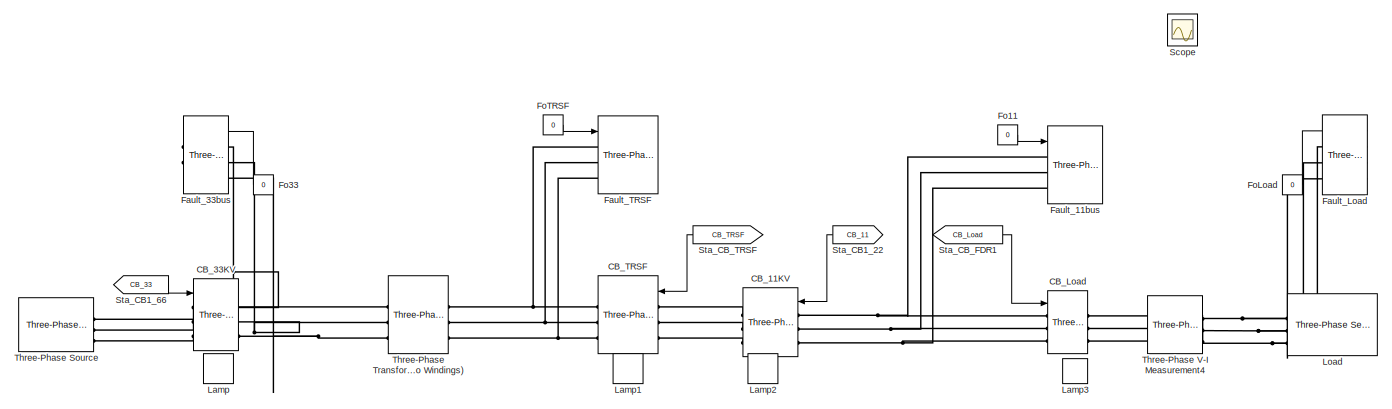
[diagram: root canvas - part 1/2, full width, top band]
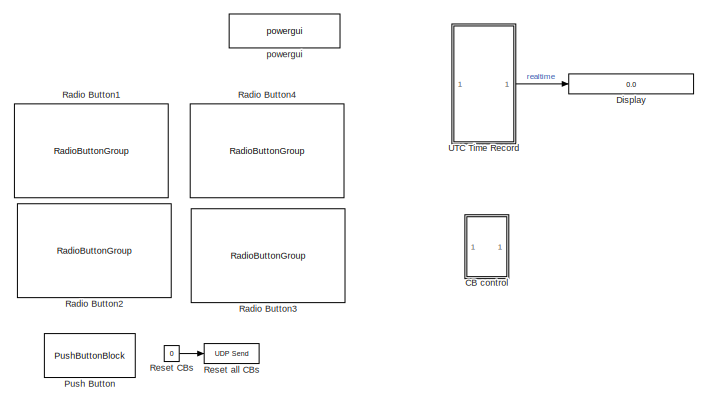
[diagram: root canvas - part 2/2, bottom right region]
MODEL slx_e654f8ced776
KIND model
CONFIG AbsTol = auto
CONFIG EnableMultiTasking = on
CONFIG FixedStep = auto
CONFIG MaxStep = 0.066666666666666671
CONFIG MinStep = auto
CONFIG RelTol = 1e-4
CONFIG SampleTimeConstraint = Unconstrained
CONFIG SolverName = ode23tb
CONFIG StartTime = 0.0
CONFIG StopTime = 50
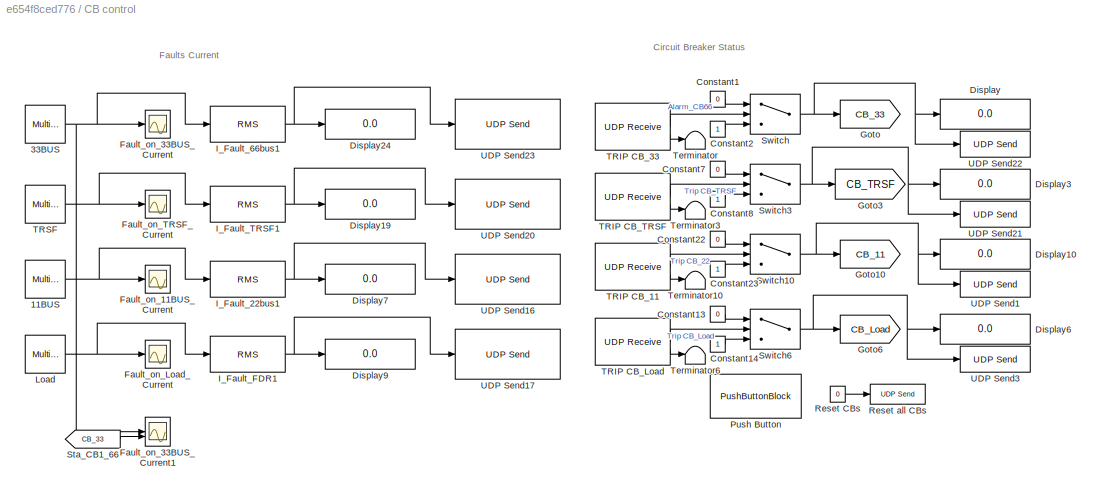
BLOCK [SubSystem] CB control
BLOCK [Reference] CB control/11BUS  REF=spsMultimeterLib/Multimeter
  LibrarySourceBlock = sps_lib/Sensors and Measurements/Multimeter
  SourceBlock = spsMultimeterLib/Multimeter
  SourceType = Multimeter
BLOCK [Reference] CB control/33BUS  REF=spsMultimeterLib/Multimeter
  LibrarySourceBlock = sps_lib/Sensors and Measurements/Multimeter
  SourceBlock = spsMultimeterLib/Multimeter
  SourceType = Multimeter
BLOCK [Constant] CB control/Constant1
  Value = 0
BLOCK [Constant] CB control/Constant13
  Value = 0
BLOCK [Constant] CB control/Constant14
BLOCK [Constant] CB control/Constant2
BLOCK [Constant] CB control/Constant22
  Value = 0
BLOCK [Constant] CB control/Constant23
BLOCK [Constant] CB control/Constant7
  Value = 0
BLOCK [Constant] CB control/Constant8
BLOCK [Display] CB control/Display
  Decimation = 1
BLOCK [Display] CB control/Display10
  Decimation = 1
BLOCK [Display] CB control/Display19
  Decimation = 1
BLOCK [Display] CB control/Display24
  Decimation = 1
BLOCK [Display] CB control/Display3
  Decimation = 1
BLOCK [Display] CB control/Display6
  Decimation = 1
BLOCK [Display] CB control/Display7
  Decimation = 1
BLOCK [Display] CB control/Display9
  Decimation = 1
BLOCK [Scope] CB control/Fault_on_11BUS_Current
  Floating = off
  NumInputPorts = 1
  ScopeSpecificationString = Simulink.scopes.TimeScopeBlockCfg('CurrentConfiguration', extmgr.ConfigurationSet(extmgr.Configuration('Core','General UI',true),extmgr.Configuration('Core','Source UI',true),extmgr.Configuration('Sources','WiredSimulink',true,'DataLoggingVariableName','ScopeData1','DataLoggingSaveFormat','StructureWithTime','DataLoggingLimitDataPoints',true,'DataLoggingDecimation','1','DataLoggingDecimateData',tr...<+1819ch>
BLOCK [Scope] CB control/Fault_on_33BUS_Current
  Floating = off
  NumInputPorts = 1
  ScopeSpecificationString = Simulink.scopes.TimeScopeBlockCfg('CurrentConfiguration', extmgr.ConfigurationSet(extmgr.Configuration('Core','General UI',true),extmgr.Configuration('Core','Source UI',true),extmgr.Configuration('Sources','WiredSimulink',true,'DataLoggingVariableName','ScopeData2','DataLoggingSaveFormat','StructureWithTime','DataLoggingLimitDataPoints',true,'DataLoggingDecimation','1','DataLoggingDecimateData',tr...<+1859ch>
BLOCK [Scope] CB control/Fault_on_33BUS_Current1
  Floating = off
  NumInputPorts = 2
  ScopeSpecificationString = Simulink.scopes.TimeScopeBlockCfg('CurrentConfiguration', extmgr.ConfigurationSet(extmgr.Configuration('Core','General UI',true),extmgr.Configuration('Core','Source UI',true),extmgr.Configuration('Sources','WiredSimulink',true,'DataLoggingVariableName','ScopeData1','DataLoggingSaveFormat','StructureWithTime','DataLoggingLimitDataPoints',true,'DataLoggingDecimation','1','DataLoggingDecimateData',tr...<+1793ch>
BLOCK [Scope] CB control/Fault_on_Load_Current
  Floating = off
  NumInputPorts = 1
  ScopeSpecificationString = Simulink.scopes.TimeScopeBlockCfg('CurrentConfiguration', extmgr.ConfigurationSet(extmgr.Configuration('Core','General UI',true),extmgr.Configuration('Core','Source UI',true),extmgr.Configuration('Sources','WiredSimulink',true,'DataLoggingVariableName','ScopeData3','DataLoggingSaveFormat','StructureWithTime','DataLoggingLimitDataPoints',true,'DataLoggingDecimation','1','DataLoggingDecimateData',tr...<+1826ch>
BLOCK [Scope] CB control/Fault_on_TRSF_Current
  Floating = off
  NumInputPorts = 1
  ScopeSpecificationString = Simulink.scopes.TimeScopeBlockCfg('CurrentConfiguration', extmgr.ConfigurationSet(extmgr.Configuration('Core','General UI',true),extmgr.Configuration('Core','Source UI',true),extmgr.Configuration('Sources','WiredSimulink',true,'DataLoggingVariableName','ScopeData4','DataLoggingSaveFormat','StructureWithTime','DataLoggingLimitDataPoints',true,'DataLoggingDecimation','1','DataLoggingDecimateData',tr...<+1819ch>
BLOCK [Goto] CB control/Goto
  GotoTag = CB_33
  TagVisibility = global
BLOCK [Goto] CB control/Goto10
  GotoTag = CB_11
  TagVisibility = global
BLOCK [Goto] CB control/Goto3
  GotoTag = CB_TRSF
  TagVisibility = global
BLOCK [Goto] CB control/Goto6
  GotoTag = CB_Load
  TagVisibility = global
BLOCK [Reference] CB control/I_Fault_22bus1  REF=dspstat3/RMS
  SourceBlock = dspstat3/RMS
  SourceType = RMS
  UserDataPersistent = on
BLOCK [Reference] CB control/I_Fault_66bus1  REF=dspstat3/RMS
  SourceBlock = dspstat3/RMS
  SourceType = RMS
  UserDataPersistent = on
BLOCK [Reference] CB control/I_Fault_FDR1  REF=dspstat3/RMS
  SourceBlock = dspstat3/RMS
  SourceType = RMS
  UserDataPersistent = on
BLOCK [Reference] CB control/I_Fault_TRSF1  REF=dspstat3/RMS
  SourceBlock = dspstat3/RMS
  SourceType = RMS
  UserDataPersistent = on
BLOCK [Reference] CB control/Load  REF=spsMultimeterLib/Multimeter
  LibrarySourceBlock = sps_lib/Sensors and Measurements/Multimeter
  SourceBlock = spsMultimeterLib/Multimeter
  SourceType = Multimeter
BLOCK [PushButtonBlock] CB control/Push Button
  ButtonText = Reset All CBs
  OffValue = 0.000000
BLOCK [Constant] CB control/Reset CBs
  SampleTime = 0
  Value = 0
BLOCK [Reference] CB control/Reset all CBs  REF=dspnetwork/UDP Send
  SourceBlock = dspnetwork/UDP Send
  SourceType = UDP Send
BLOCK [From] CB control/Sta_CB1_66
  GotoTag = CB_33
  IconDisplay = Tag and signal name
  TagVisibility = global
BLOCK [Switch] CB control/Switch
  Criteria = u2 > Threshold
  InputSameDT = off
  SaturateOnIntegerOverflow = off
BLOCK [Switch] CB control/Switch10
  Criteria = u2 > Threshold
  InputSameDT = off
  SaturateOnIntegerOverflow = off
BLOCK [Switch] CB control/Switch3
  Criteria = u2 > Threshold
  InputSameDT = off
  SaturateOnIntegerOverflow = off
BLOCK [Switch] CB control/Switch6
  Criteria = u2 > Threshold
  InputSameDT = off
  SaturateOnIntegerOverflow = off
BLOCK [Reference] CB control/TRIP CB_11  REF=dspnetwork/UDP Receive
  SourceBlock = dspnetwork/UDP Receive
  SourceType = UDP Receive
BLOCK [Reference] CB control/TRIP CB_33  REF=dspnetwork/UDP Receive
  SourceBlock = dspnetwork/UDP Receive
  SourceType = UDP Receive
BLOCK [Reference] CB control/TRIP CB_Load  REF=dspnetwork/UDP Receive
  SourceBlock = dspnetwork/UDP Receive
  SourceType = UDP Receive
BLOCK [Reference] CB control/TRIP CB_TRSF  REF=dspnetwork/UDP Receive
  SourceBlock = dspnetwork/UDP Receive
  SourceType = UDP Receive
BLOCK [Reference] CB control/TRSF  REF=spsMultimeterLib/Multimeter
  LibrarySourceBlock = sps_lib/Sensors and Measurements/Multimeter
  SourceBlock = spsMultimeterLib/Multimeter
  SourceType = Multimeter
BLOCK [Terminator] CB control/Terminator
BLOCK [Terminator] CB control/Terminator10
BLOCK [Terminator] CB control/Terminator3
BLOCK [Terminator] CB control/Terminator6
BLOCK [Reference] CB control/UDP Send1  REF=dspnetwork/UDP Send
  SourceBlock = dspnetwork/UDP Send
  SourceType = UDP Send
BLOCK [Reference] CB control/UDP Send16  REF=dspnetwork/UDP Send
  SourceBlock = dspnetwork/UDP Send
  SourceType = UDP Send
BLOCK [Reference] CB control/UDP Send17  REF=dspnetwork/UDP Send
  SourceBlock = dspnetwork/UDP Send
  SourceType = UDP Send
BLOCK [Reference] CB control/UDP Send20  REF=dspnetwork/UDP Send
  SourceBlock = dspnetwork/UDP Send
  SourceType = UDP Send
BLOCK [Reference] CB control/UDP Send21  REF=dspnetwork/UDP Send
  SourceBlock = dspnetwork/UDP Send
  SourceType = UDP Send
BLOCK [Reference] CB control/UDP Send22  REF=dspnetwork/UDP Send
  SourceBlock = dspnetwork/UDP Send
  SourceType = UDP Send
BLOCK [Reference] CB control/UDP Send23  REF=dspnetwork/UDP Send
  SourceBlock = dspnetwork/UDP Send
  SourceType = UDP Send
BLOCK [Reference] CB control/UDP Send3  REF=dspnetwork/UDP Send
  SourceBlock = dspnetwork/UDP Send
  SourceType = UDP Send
BLOCK [Reference] CB_11KV  REF=spsThreePhaseBreakerLib/Three-Phase Breaker
  LibrarySourceBlock = sps_lib/Power Grid Elements/Three-Phase Breaker
  NameLocation = top
  SourceBlock = spsThreePhaseBreakerLib/Three-Phase Breaker
  SourceType = Three-Phase Breaker
BLOCK [Reference] CB_33KV  REF=spsThreePhaseBreakerLib/Three-Phase Breaker
  LibrarySourceBlock = sps_lib/Power Grid Elements/Three-Phase Breaker
  NameLocation = top
  SourceBlock = spsThreePhaseBreakerLib/Three-Phase Breaker
  SourceType = Three-Phase Breaker
BLOCK [Reference] CB_Load  REF=spsThreePhaseBreakerLib/Three-Phase Breaker
  LibrarySourceBlock = sps_lib/Power Grid Elements/Three-Phase Breaker
  NameLocation = top
  SourceBlock = spsThreePhaseBreakerLib/Three-Phase Breaker
  SourceType = Three-Phase Breaker
BLOCK [Reference] CB_TRSF  REF=spsThreePhaseBreakerLib/Three-Phase Breaker
  LibrarySourceBlock = sps_lib/Power Grid Elements/Three-Phase Breaker
  NameLocation = top
  SourceBlock = spsThreePhaseBreakerLib/Three-Phase Breaker
  SourceType = Three-Phase Breaker
BLOCK [Display] Display
  Commented = on
  Decimation = 1
  Format = long
BLOCK [Reference] Fault_11bus  REF=spsThreePhaseFaultLib/Three-Phase Fault
  LibrarySourceBlock = sps_lib/Power Grid Elements/Three-Phase Fault
  NameLocation = top
  SourceBlock = spsThreePhaseFaultLib/Three-Phase Fault
  SourceType = Three-Phase Fault
BLOCK [Reference] Fault_33bus  REF=spsThreePhaseFaultLib/Three-Phase Fault
  LibrarySourceBlock = sps_lib/Power Grid Elements/Three-Phase Fault
  SourceBlock = spsThreePhaseFaultLib/Three-Phase Fault
  SourceType = Three-Phase Fault
BLOCK [Reference] Fault_Load  REF=spsThreePhaseFaultLib/Three-Phase Fault
  LibrarySourceBlock = sps_lib/Power Grid Elements/Three-Phase Fault
  NameLocation = right
  SourceBlock = spsThreePhaseFaultLib/Three-Phase Fault
  SourceType = Three-Phase Fault
BLOCK [Reference] Fault_TRSF  REF=spsThreePhaseFaultLib/Three-Phase Fault
  LibrarySourceBlock = sps_lib/Power Grid Elements/Three-Phase Fault
  NameLocation = top
  SourceBlock = spsThreePhaseFaultLib/Three-Phase Fault
  SourceType = Three-Phase Fault
BLOCK [Constant] Fo11
  NameLocation = top
  SampleTime = 0
  Value = 0
BLOCK [Constant] Fo33
  SampleTime = 0
  Value = 0
BLOCK [Constant] FoLoad
  SampleTime = 0
  Value = 0
BLOCK [Constant] FoTRSF
  SampleTime = 0
  Value = 0
BLOCK [LampBlock] Lamp
  Icon = Square
  LabelPosition = Hide
BLOCK [LampBlock] Lamp1
  Icon = Square
  LabelPosition = Hide
BLOCK [LampBlock] Lamp2
  Icon = Square
  LabelPosition = Hide
BLOCK [LampBlock] Lamp3
  Icon = Square
  LabelPosition = Hide
BLOCK [Reference] Load  REF=spsThreePhaseSeriesRLCLoadLib/Three-Phase
Series RLC Load
  AttributesFormatString = \n
  LibrarySourceBlock = sps_lib/Passives/Three-Phase\nSeries RLC Load
  SourceBlock = spsThreePhaseSeriesRLCLoadLib/Three-Phase\nSeries RLC Load
  SourceType = Three-Phase Series RLC Load
BLOCK [PushButtonBlock] Push Button
  ButtonText = Reset All CBs
  OffValue = 0.000000
BLOCK [RadioButtonGroup] Radio Button1
  ButtonGroupName = Fault on 33bus
  LabelPosition = Hide
  SelectedLabel = Normal
BLOCK [RadioButtonGroup] Radio Button2
  ButtonGroupName = Fault on TRSF
  LabelPosition = Hide
  SelectedLabel = Normal
BLOCK [RadioButtonGroup] Radio Button3
  ButtonGroupName = Fault on Load
  LabelPosition = Hide
  SelectedLabel = Normal
BLOCK [RadioButtonGroup] Radio Button4
  ButtonGroupName = Fault on 11BUS
  LabelPosition = Hide
  SelectedLabel = Normal
BLOCK [Constant] Reset CBs
  SampleTime = 0
  Value = 0
BLOCK [Reference] Reset all CBs  REF=dspnetwork/UDP Send
  SourceBlock = dspnetwork/UDP Send
  SourceType = UDP Send
BLOCK [Scope] Scope
  Floating = off
  IOType = viewer
  NumInputPorts = 1
  ScopeSpecificationString = Simulink.scopes.TimeScopeBlockCfg('CurrentConfiguration', extmgr.ConfigurationSet(extmgr.Configuration('Core','General UI',true),extmgr.Configuration('Core','Source UI',true),extmgr.Configuration('Sources','WiredSimulink',true,'DataLoggingVariableName','ScopeData1'),extmgr.Configuration('Visuals','Time Domain',true,'SerializedDisplays',{struct('MinYLimReal','-10.00000','MaxYLimReal','10.00000','YL...<+1394ch>
BLOCK [From] Sta_CB1_22
  GotoTag = CB_11
  TagVisibility = global
BLOCK [From] Sta_CB1_66
  GotoTag = CB_33
  IconDisplay = Tag and signal name
  TagVisibility = global
BLOCK [From] Sta_CB_FDR1
  GotoTag = CB_Load
  NameLocation = top
  TagVisibility = global
BLOCK [From] Sta_CB_TRSF
  GotoTag = CB_TRSF
  TagVisibility = global
BLOCK [Reference] Three-Phase Source  REF=spsThreePhaseSourceLib/Three-Phase Source
  LibrarySourceBlock = sps_lib/Sources/Three-Phase Source
  SourceBlock = spsThreePhaseSourceLib/Three-Phase Source
  SourceType = Three-Phase Source
BLOCK [Reference] Three-Phase Transformer (Two Windings)  REF=spsThreePhaseTransformerTwoWindingsLib/Three-Phase
Transformer
(Two Windings)
  LibrarySourceBlock = sps_lib/Power Grid Elements/Three-Phase\nTransformer\n(Two Windings)
  NameLocation = top
  SourceBlock = spsThreePhaseTransformerTwoWindingsLib/Three-Phase\nTransformer\n(Two Windings)
  SourceType = Three-Phase Transformer (Two Windings)
BLOCK [Reference] Three-Phase V-I Measurement4  REF=spsThreePhaseVIMeasurementLib/Three-Phase
V-I Measurement
  LibrarySourceBlock = sps_lib/Sensors and Measurements/Three-Phase\nV-I Measurement
  SourceBlock = spsThreePhaseVIMeasurementLib/Three-Phase\nV-I Measurement
  SourceType = Three-Phase VI Measurement
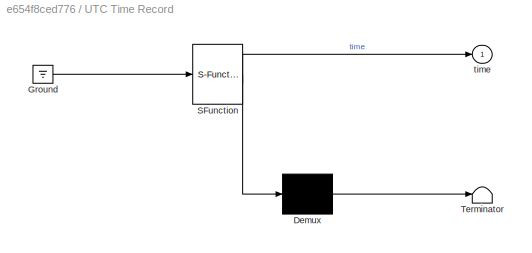
BLOCK [SubSystem] UTC Time Record
  Commented = on
  ErrorFcn = Stateflow.Translate.translate
  PermitHierarchicalResolution = ExplicitOnly
  SFBlockType = MATLAB Function
  TreatAsAtomicUnit = on
BLOCK [Demux] UTC Time Record/ Demux 
  Outputs = 1
BLOCK [Ground] UTC Time Record/ Ground 
BLOCK [S-Function] UTC Time Record/ SFunction 
  EnableBusSupport = on
  FunctionName = sf_sfun
  PortCounts = [1 2]
  SFcnIsStateOwnerBlock = off
  SFunctionDeploymentMode = off
  Tag = Stateflow S-Function 2
BLOCK [Terminator] UTC Time Record/ Terminator 
BLOCK [Outport] UTC Time Record/time
BLOCK [Reference] powergui  REF=sps_lib/powergui
  Priority = 1
  SourceBlock = sps_lib/powergui
  SourceType = PSB option menu block
ANNOTATION CB control: Circuit Breaker Status
ANNOTATION CB control: Faults Current
NET CB control/11BUS:1 -> CB control/Fault_on_11BUS_Current:1, CB control/I_Fault_22bus1:1
NET CB control/33BUS:1 -> CB control/Fault_on_33BUS_Current1:1, CB control/Fault_on_33BUS_Current:1, CB control/I_Fault_66bus1:1
LINE CB control/Constant13:1 -> CB control/Switch6:1
LINE CB control/Constant14:1 -> CB control/Switch6:3
LINE CB control/Constant1:1 -> CB control/Switch:1
LINE CB control/Constant22:1 -> CB control/Switch10:1
LINE CB control/Constant23:1 -> CB control/Switch10:3
LINE CB control/Constant2:1 -> CB control/Switch:3
LINE CB control/Constant7:1 -> CB control/Switch3:1
LINE CB control/Constant8:1 -> CB control/Switch3:3
NET CB control/I_Fault_22bus1:1 -> CB control/Display7:1, CB control/UDP Send16:1
NET CB control/I_Fault_66bus1:1 -> CB control/Display24:1, CB control/UDP Send23:1
NET CB control/I_Fault_FDR1:1 -> CB control/Display9:1, CB control/UDP Send17:1
NET CB control/I_Fault_TRSF1:1 -> CB control/Display19:1, CB control/UDP Send20:1
NET CB control/Load:1 -> CB control/Fault_on_Load_Current:1, CB control/I_Fault_FDR1:1
LINE CB control/Reset CBs:1 -> CB control/Reset all CBs:1
LINE CB control/Sta_CB1_66:1 -> CB control/Fault_on_33BUS_Current1:2
NET CB control/Switch10:1 -> CB control/Display10:1, CB control/Goto10:1, CB control/UDP Send1:1
NET CB control/Switch3:1 -> CB control/Display3:1, CB control/Goto3:1, CB control/UDP Send21:1
NET CB control/Switch6:1 -> CB control/Display6:1, CB control/Goto6:1, CB control/UDP Send3:1
NET CB control/Switch:1 -> CB control/Display:1, CB control/Goto:1, CB control/UDP Send22:1
LINE CB control/TRIP CB_11:1 -> CB control/Switch10:2
LINE CB control/TRIP CB_11:2 -> CB control/Terminator10:1
LINE CB control/TRIP CB_33:1 -> CB control/Switch:2
LINE CB control/TRIP CB_33:2 -> CB control/Terminator:1
LINE CB control/TRIP CB_Load:1 -> CB control/Switch6:2
LINE CB control/TRIP CB_Load:2 -> CB control/Terminator6:1
LINE CB control/TRIP CB_TRSF:1 -> CB control/Switch3:2
LINE CB control/TRIP CB_TRSF:2 -> CB control/Terminator3:1
NET CB control/TRSF:1 -> CB control/Fault_on_TRSF_Current:1, CB control/I_Fault_TRSF1:1
LINE Fo11:1 -> Fault_11bus:1
LINE Fo33:1 -> Fault_33bus:1
LINE FoLoad:1 -> Fault_Load:1
LINE FoTRSF:1 -> Fault_TRSF:1
LINE Reset CBs:1 -> Reset all CBs:1
LINE Sta_CB1_22:1 -> CB_11KV:1
LINE Sta_CB1_66:1 -> CB_33KV:1
LINE Sta_CB_FDR1:1 -> CB_Load:1
LINE Sta_CB_TRSF:1 -> CB_TRSF:1
LINE UTC Time Record:1 -> Display:1
PNET net1: CB_11KV:LConn1 -- CB_Load:LConn1 -- Fault_11bus:LConn1
PNET net2: CB_11KV:LConn2 -- CB_Load:LConn2 -- Fault_11bus:LConn2
PNET net3: CB_11KV:LConn3 -- CB_Load:LConn3 -- Fault_11bus:LConn3
PLINE CB_11KV:RConn1 -- CB_TRSF:LConn1
PLINE CB_11KV:RConn2 -- CB_TRSF:LConn2
PLINE CB_11KV:RConn3 -- CB_TRSF:LConn3
PLINE CB_33KV:LConn1 -- Three-Phase Source:RConn1
PLINE CB_33KV:LConn2 -- Three-Phase Source:RConn2
PLINE CB_33KV:LConn3 -- Three-Phase Source:RConn3
PNET net4: CB_33KV:RConn1 -- Fault_33bus:LConn1 -- Three-Phase Transformer (Two Windings):LConn1
PNET net5: CB_33KV:RConn2 -- Fault_33bus:LConn2 -- Three-Phase Transformer (Two Windings):LConn2
PNET net6: CB_33KV:RConn3 -- Fault_33bus:LConn3 -- Three-Phase Transformer (Two Windings):LConn3
PLINE CB_Load:RConn1 -- Three-Phase V-I Measurement4:LConn3
PLINE CB_Load:RConn2 -- Three-Phase V-I Measurement4:LConn2
PLINE CB_Load:RConn3 -- Three-Phase V-I Measurement4:LConn1
PNET net7: CB_TRSF:RConn1 -- Fault_TRSF:LConn1 -- Three-Phase Transformer (Two Windings):RConn1
PNET net8: CB_TRSF:RConn2 -- Fault_TRSF:LConn2 -- Three-Phase Transformer (Two Windings):RConn2
PNET net9: CB_TRSF:RConn3 -- Fault_TRSF:LConn3 -- Three-Phase Transformer (Two Windings):RConn3
PNET net10: Fault_Load:LConn1 -- Load:LConn3 -- Three-Phase V-I Measurement4:RConn1
PNET net11: Fault_Load:LConn2 -- Load:LConn2 -- Three-Phase V-I Measurement4:RConn2
PNET net12: Fault_Load:LConn3 -- Load:LConn1 -- Three-Phase V-I Measurement4:RConn3
note: NET lines group one-source signal fan-out (src -> all destinations, sorted); 1:1 wires keep LINE; PNET lines group multi-terminal physical nets as a canonical sorted terminal list (undirected conserving connections); 2-terminal nets keep the pairwise PLINE form
CHART UTC Time Record states=1 transitions=1
  STATE_LABEL 'eML_blk_kernel()'
  STATE_LABEL "SCRIPT:\nfunction time  = fcn\n\n   eml.extrinsic('datetime');\n   eml.extrinsic('posixtime');\n\n\n   time = 0;\n\n   [time] = posixtime(datetime('now', 'TimeZone','local'));\nend"
CHART  states=0 transitions=0
